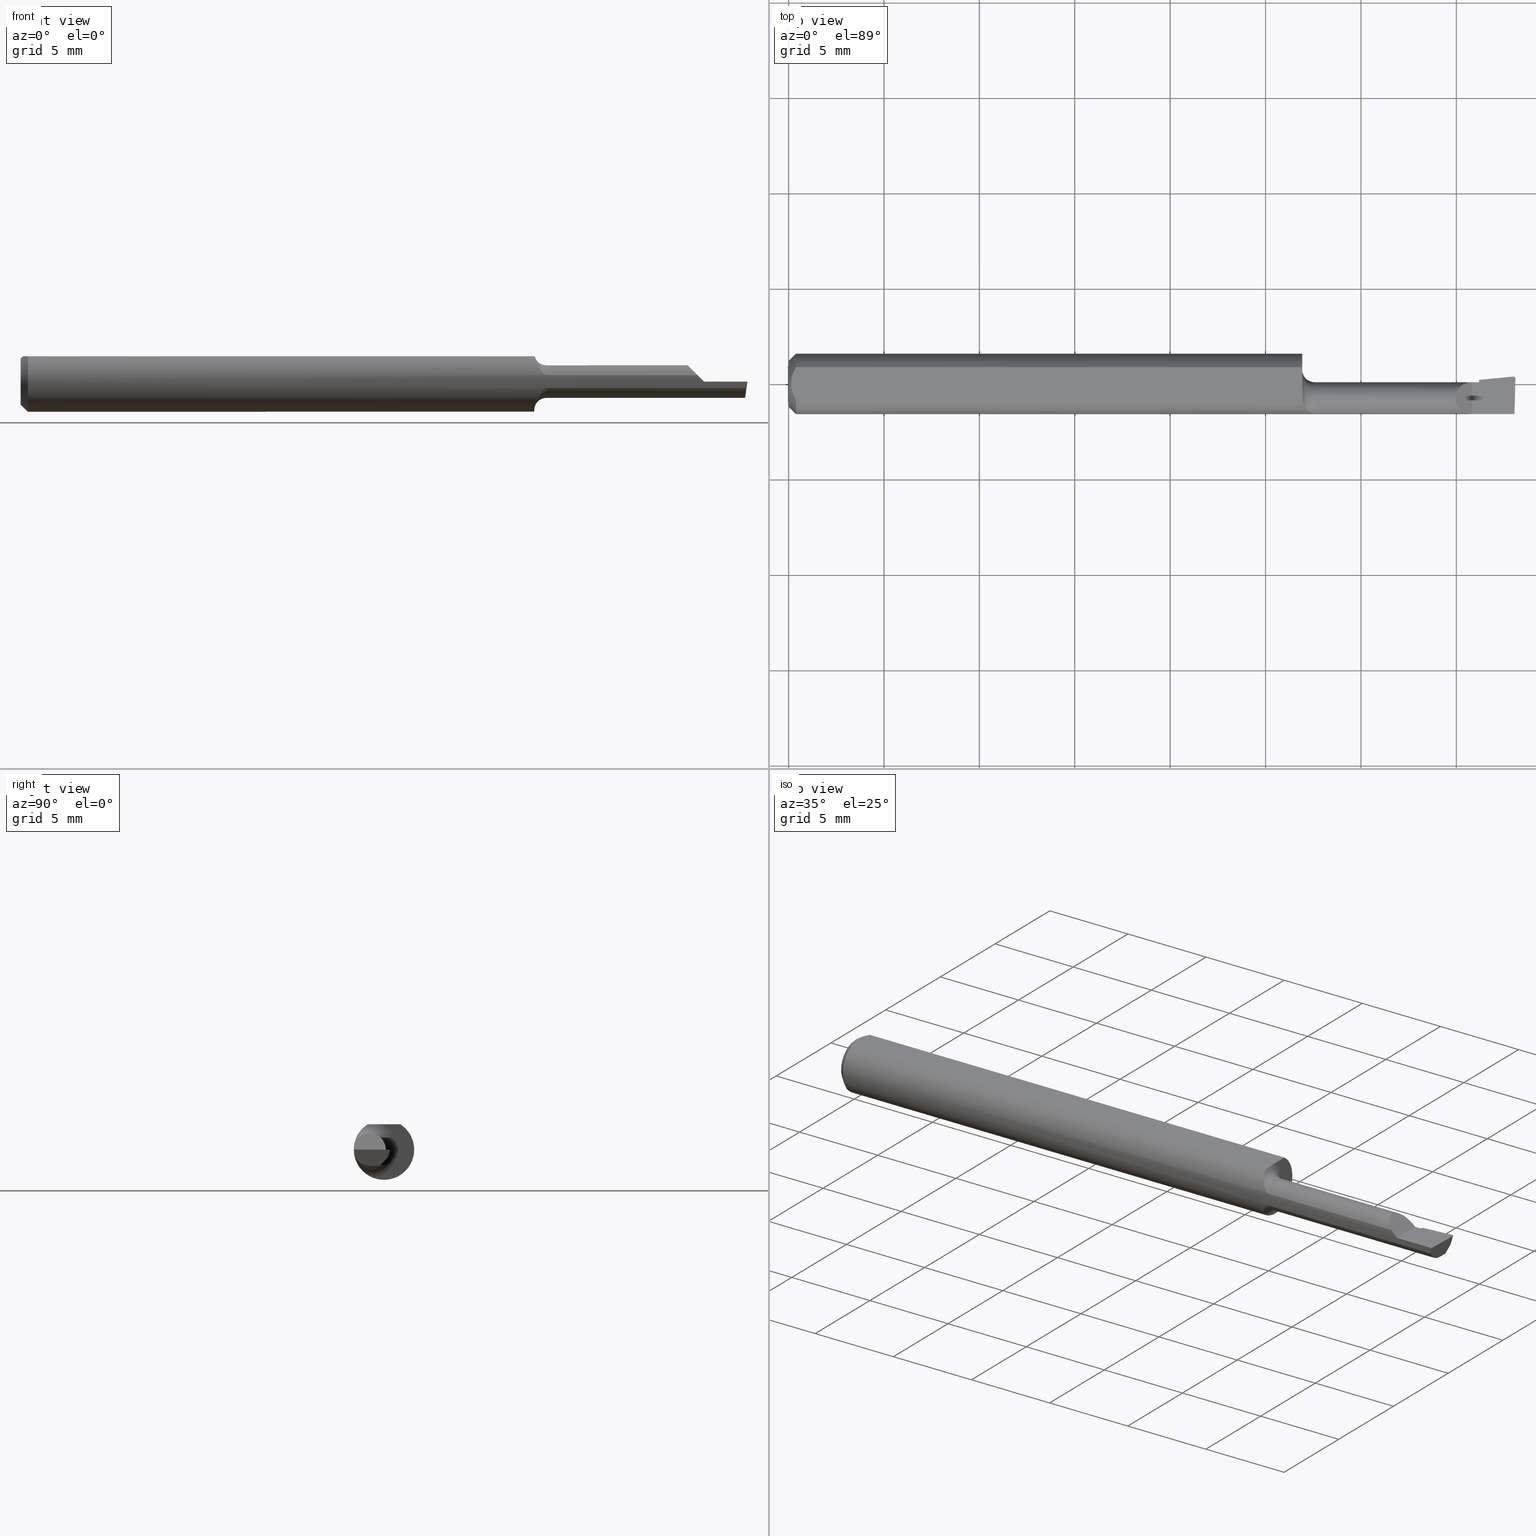
[diagram: canonical four-view strip — front | top / right | iso, engineering-drawing reading convention]
A machine part, canonical four-view strip (front | top / right | iso — engineering-drawing reading convention). The complete STEP part file that produces these views, byte-faithful:
ISO-10303-21;
HEADER;
FILE_DESCRIPTION (( 'STEP AP214' ),
    '1' );
FILE_NAME ('B080400R.STEP',
    '2020-05-08T20:21:16',
    ( '' ),
    ( '' ),
    'SwSTEP 2.0',
    'SolidWorks 2018',
    '' );
FILE_SCHEMA (( 'AUTOMOTIVE_DESIGN' ));
ENDSEC;

DATA;
#1 = VECTOR ( 'NONE', #328, 39.37007874015748143 ) ;
#2 = VERTEX_POINT ( 'NONE', #625 ) ;
#3 = EDGE_CURVE ( 'NONE', #624, #163, #52, .T. ) ;
#4 = PLANE ( 'NONE',  #387 ) ;
#5 = PLANE ( 'NONE',  #442 ) ;
#6 = VERTEX_POINT ( 'NONE', #99 ) ;
#7 = CARTESIAN_POINT ( 'NONE',  ( 1.409999999999999920, -0.06235000000000005121, 1.102182119232617911E-17 ) ) ;
#8 = FACE_OUTER_BOUND ( 'NONE', #314, .T. ) ;
#9 = AXIS2_PLACEMENT_3D ( 'NONE', #580, #238, #511 ) ;
#10 = VERTEX_POINT ( 'NONE', #94 ) ;
#11 = CARTESIAN_POINT ( 'NONE',  ( 1.421744639163020851, 0.004121984496277333009, -0.01299999999999999767 ) ) ;
#12 = LENGTH_MEASURE_WITH_UNIT ( LENGTH_MEASURE( 0.02539999999999999897 ), #202 );
#13 = CARTESIAN_POINT ( 'NONE',  ( 1.499944638786165685, 0.01353584053852251862, 5.654436638416182417E-19 ) ) ;
#14 = PRESENTATION_STYLE_ASSIGNMENT (( #279 ) ) ;
#15 = B_SPLINE_CURVE_WITH_KNOTS ( 'NONE', 3,
 ( #459, #411, #193, #286, #582, #242 ),
 .UNSPECIFIED., .F., .F.,
 ( 4, 2, 4 ),
 ( 0.003037199019464981685, 0.003488061124369676216, 0.003938923229274370746 ),
 .UNSPECIFIED. ) ;
#16 = ORIENTED_EDGE ( 'NONE', *, *, #71, .F. ) ;
#17 = CARTESIAN_POINT ( 'NONE',  ( 1.060459195061412618, -0.03294655339399239075, -0.05323881456264101253 ) ) ;
#18 = EDGE_CURVE ( 'NONE', #384, #233, #82, .T. ) ;
#19 =( GEOMETRIC_REPRESENTATION_CONTEXT ( 3 ) GLOBAL_UNCERTAINTY_ASSIGNED_CONTEXT ( ( #298 ) ) GLOBAL_UNIT_ASSIGNED_CONTEXT ( ( #399, #149, #339 ) ) REPRESENTATION_CONTEXT ( 'NONE', 'WORKASPACE' ) );
#20 =( NAMED_UNIT ( * ) PLANE_ANGLE_UNIT ( ) SI_UNIT ( $, .RADIAN. ) );
#21 = CARTESIAN_POINT ( 'NONE',  ( 1.079807319243623942, -0.06032049651225029202, 0.01580211994234496584 ) ) ;
#22 =( BOUNDED_CURVE ( )  B_SPLINE_CURVE ( 3, ( #80, #13, #113, #98 ),
 .UNSPECIFIED., .F., .T. ) 
 B_SPLINE_CURVE_WITH_KNOTS ( ( 4, 4 ),
 ( 1.953092279228625161, 3.511516179717927066 ),
 .UNSPECIFIED. ) 
 CURVE ( )  GEOMETRIC_REPRESENTATION_ITEM ( )  RATIONAL_B_SPLINE_CURVE ( ( 1.000000000000000000, 0.8076450242550308189, 0.8076450242550308189, 1.000000000000000000 ) ) 
 REPRESENTATION_ITEM ( '' )  );
#23 = ORIENTED_EDGE ( 'NONE', *, *, #409, .F. ) ;
#24 = FACE_OUTER_BOUND ( 'NONE', #475, .T. ) ;
#25 =( NAMED_UNIT ( * ) SI_UNIT ( $, .STERADIAN. ) SOLID_ANGLE_UNIT ( ) );
#26 = EDGE_CURVE ( 'NONE', #6, #237, #195, .T. ) ;
#27 = VERTEX_POINT ( 'NONE', #470 ) ;
#28 = ORIENTED_EDGE ( 'NONE', *, *, #462, .T. ) ;
#29 = CARTESIAN_POINT ( 'NONE',  ( 1.363008094618844535, 0.003649999999999974879, 0.04699190538115510102 ) ) ;
#30 = LINE ( 'NONE', #416, #212 ) ;
#31 = CONICAL_SURFACE ( 'NONE', #220, 0.06235000000000000264, 0.7853981633974594923 ) ;
#32 = CARTESIAN_POINT ( 'NONE',  ( 1.060770118751884317, -0.03386738844373782253, 0.05235000000000000070 ) ) ;
#33 =( LENGTH_UNIT ( ) NAMED_UNIT ( * ) SI_UNIT ( $, .METRE. ) );
#34 = CARTESIAN_POINT ( 'NONE',  ( 1.425000000000000266, 0.01742832138518450244, 0.0000000000000000000 ) ) ;
#35 = ADVANCED_FACE ( 'NONE', ( #83 ), #421, .F. ) ;
#36 = DIRECTION ( 'NONE',  ( -2.845674993400274571E-18, -1.000000000000000000, 0.0000000000000000000 ) ) ;
#37 = DIRECTION ( 'NONE',  ( -1.000000000000000000, -0.0000000000000000000, -0.0000000000000000000 ) ) ;
#38 = AXIS2_PLACEMENT_3D ( 'NONE', #89, #135, #449 ) ;
#39 = DIRECTION ( 'NONE',  ( 1.000000000000000000, -2.845674993400274571E-18, 0.0000000000000000000 ) ) ;
#40 = ADVANCED_FACE ( 'NONE', ( #24 ), #507, .T. ) ;
#41 = ORIENTED_EDGE ( 'NONE', *, *, #131, .T. ) ;
#42 = CARTESIAN_POINT ( 'NONE',  ( 1.496364186706980792, -0.06092000000000002968, -0.01327690099383122685 ) ) ;
#43 = DIRECTION ( 'NONE',  ( 0.0000000000000000000, 1.000000000000000000, 0.0000000000000000000 ) ) ;
#44 = ORIENTED_EDGE ( 'NONE', *, *, #438, .F. ) ;
#45 = DIMENSIONAL_EXPONENTS ( 1.000000000000000000, 0.0000000000000000000, 0.0000000000000000000, 0.0000000000000000000, 0.0000000000000000000, 0.0000000000000000000, 0.0000000000000000000 ) ;
#46 = PLANE ( 'NONE',  #593 ) ;
#47 = DIRECTION ( 'NONE',  ( -0.1240019227990024203, -0.3022330132596681151, -0.9451342385281211733 ) ) ;
#48 =( CONVERSION_BASED_UNIT ( 'INCH', #346 ) LENGTH_UNIT ( ) NAMED_UNIT ( #198 ) );
#49 = VERTEX_POINT ( 'NONE', #599 ) ;
#50 = ORIENTED_EDGE ( 'NONE', *, *, #192, .F. ) ;
#51 = DIRECTION ( 'NONE',  ( 0.06894566448119619773, -0.7160281025913035613, 0.6946583704589934793 ) ) ;
#52 =( BOUNDED_CURVE ( )  B_SPLINE_CURVE ( 3, ( #597, #574, #628, #347 ),
 .UNSPECIFIED., .F., .T. ) 
 B_SPLINE_CURVE_WITH_KNOTS ( ( 4, 4 ),
 ( 1.146162383294269560, 1.360746882514247469 ),
 .UNSPECIFIED. ) 
 CURVE ( )  GEOMETRIC_REPRESENTATION_ITEM ( )  RATIONAL_B_SPLINE_CURVE ( ( 1.000000000000000000, 0.9961664706887894960, 0.9961664706887894960, 1.000000000000000000 ) ) 
 REPRESENTATION_ITEM ( '' )  );
#53 = CARTESIAN_POINT ( 'NONE',  ( 1.422586135878207481, -0.004617293032568263803, -0.02209164292227905335 ) ) ;
#54 = FACE_OUTER_BOUND ( 'NONE', #324, .T. ) ;
#55 = AXIS2_PLACEMENT_3D ( 'NONE', #336, #145, #410 ) ;
#56 = FACE_OUTER_BOUND ( 'NONE', #592, .T. ) ;
#57 = DIRECTION ( 'NONE',  ( 0.0000000000000000000, 0.0000000000000000000, 1.000000000000000000 ) ) ;
#58 = CARTESIAN_POINT ( 'NONE',  ( 1.495634880358096996, 0.01522968678441272497, 4.859216828160406885E-19 ) ) ;
#59 = B_SPLINE_CURVE_WITH_KNOTS ( 'NONE', 3,
 ( #183, #402, #446, #364 ),
 .UNSPECIFIED., .F., .F.,
 ( 4, 4 ),
 ( 0.0000000000000000000, 1.000000000000000000 ),
 .UNSPECIFIED. ) ;
#60 = ORIENTED_EDGE ( 'NONE', *, *, #178, .T. ) ;
#61 = CARTESIAN_POINT ( 'NONE',  ( 1.495883579913040773, 0.01524764111161443919, 1.062779938853728175E-18 ) ) ;
#62 = CARTESIAN_POINT ( 'NONE',  ( 1.422808130611181499, -0.006922796484203440522, -0.02449010367251428302 ) ) ;
#63 = EDGE_CURVE ( 'NONE', #2, #6, #432, .T. ) ;
#64 = ORIENTED_EDGE ( 'NONE', *, *, #71, .T. ) ;
#65 = FILL_AREA_STYLE_COLOUR ( '', #373 ) ;
#66 = AXIS2_PLACEMENT_3D ( 'NONE', #415, #147, #191 ) ;
#67 = VERTEX_POINT ( 'NONE', #537 ) ;
#68 = ORIENTED_EDGE ( 'NONE', *, *, #224, .T. ) ;
#69 = ORIENTED_EDGE ( 'NONE', *, *, #380, .F. ) ;
#70 = DIRECTION ( 'NONE',  ( 0.06894566448119619773, -0.7160281025913035613, 0.6946583704589934793 ) ) ;
#71 = EDGE_CURVE ( 'NONE', #634, #115, #469, .T. ) ;
#72 = FACE_OUTER_BOUND ( 'NONE', #210, .T. ) ;
#73 = CARTESIAN_POINT ( 'NONE',  ( 1.060000000000000275, -0.003555718954753289696, 0.05235000000000000070 ) ) ;
#74 = VECTOR ( 'NONE', #37, 39.37007874015748143 ) ;
#75 = DIRECTION ( 'NONE',  ( 1.000000000000000000, 0.0000000000000000000, 0.0000000000000000000 ) ) ;
#76 = DIRECTION ( 'NONE',  ( 0.02617694830794567093, 0.9996573249755552615, -3.584133854804236655E-18 ) ) ;
#77 = EDGE_CURVE ( 'NONE', #67, #237, #478, .T. ) ;
#78 = VERTEX_POINT ( 'NONE', #140 ) ;
#79 = VERTEX_POINT ( 'NONE', #95 ) ;
#80 = CARTESIAN_POINT ( 'NONE',  ( 1.499880855614027064, 0.01110005946549046454, -8.416961635954006228E-20 ) ) ;
#81 = LINE ( 'NONE', #376, #304 ) ;
#82 = CIRCLE ( 'NONE', #136, 0.03364999999999995772 ) ;
#83 = FACE_OUTER_BOUND ( 'NONE', #250, .T. ) ;
#84 = CARTESIAN_POINT ( 'NONE',  ( 1.064663954570610249, -0.04772651244230442791, 0.04037711979630428938 ) ) ;
#85 = FACE_BOUND ( 'NONE', #481, .T. ) ;
#86 = ORIENTED_EDGE ( 'NONE', *, *, #427, .T. ) ;
#87 = CARTESIAN_POINT ( 'NONE',  ( 1.082669914596958050, -0.06082078945086089039, 0.01373977049058535890 ) ) ;
#88 = ORIENTED_EDGE ( 'NONE', *, *, #272, .T. ) ;
#89 = CARTESIAN_POINT ( 'NONE',  ( 1.500000000000000222, 0.1123499999999999915, 0.05234999999999998682 ) ) ;
#90 = FACE_OUTER_BOUND ( 'NONE', #647, .T. ) ;
#91 = DIRECTION ( 'NONE',  ( -1.000000000000000000, 2.845674993400274571E-18, 0.0000000000000000000 ) ) ;
#92 = CARTESIAN_POINT ( 'NONE',  ( 1.060000000000000275, 0.1123499999999999915, 0.05234999999999998682 ) ) ;
#93 = ADVANCED_FACE ( 'NONE', ( #204 ), #505, .F. ) ;
#94 = CARTESIAN_POINT ( 'NONE',  ( 1.396723099006168756, -0.06092000000000002968, 0.01327690099383124073 ) ) ;
#95 = CARTESIAN_POINT ( 'NONE',  ( 1.425000000000000266, 0.004435440092809578294, -0.01299999999999999767 ) ) ;
#96 = ORIENTED_EDGE ( 'NONE', *, *, #236, .F. ) ;
#97 = ADVANCED_FACE ( 'NONE', ( #311 ), #405, .F. ) ;
#98 = CARTESIAN_POINT ( 'NONE',  ( 1.496007920276510195, 0.01524764111161444266, -1.067128122525102820E-18 ) ) ;
#99 = CARTESIAN_POINT ( 'NONE',  ( 1.495634880358096996, 0.01522968678441272497, 4.859216828160406885E-19 ) ) ;
#100 = EDGE_CURVE ( 'NONE', #618, #79, #230, .T. ) ;
#101 = CARTESIAN_POINT ( 'NONE',  ( 1.060000000000000275, 0.0000000000000000000, 0.0000000000000000000 ) ) ;
#102 = VECTOR ( 'NONE', #616, 39.37007874015748143 ) ;
#103 = ORIENTED_EDGE ( 'NONE', *, *, #192, .T. ) ;
#104 = DIRECTION ( 'NONE',  ( 0.1240019227990024203, 0.3022330132596681151, 0.9451342385281212843 ) ) ;
#105 = VECTOR ( 'NONE', #480, 39.37007874015748143 ) ;
#106 = CARTESIAN_POINT ( 'NONE',  ( 1.497957498117606479, -0.06235000000000005121, 1.791754701920804801E-19 ) ) ;
#107 =( BOUNDED_CURVE ( )  B_SPLINE_CURVE ( 3, ( #585, #337, #412, #150 ),
 .UNSPECIFIED., .F., .T. ) 
 B_SPLINE_CURVE_WITH_KNOTS ( ( 4, 4 ),
 ( 3.156599629463101131, 4.715023529952379278 ),
 .UNSPECIFIED. ) 
 CURVE ( )  GEOMETRIC_REPRESENTATION_ITEM ( )  RATIONAL_B_SPLINE_CURVE ( ( 1.000000000000000000, 0.8076450242550362590, 0.8076450242550362590, 1.000000000000000000 ) ) 
 REPRESENTATION_ITEM ( '' )  );
#108 = ORIENTED_EDGE ( 'NONE', *, *, #178, .F. ) ;
#109 = EDGE_CURVE ( 'NONE', #488, #516, #501, .T. ) ;
#110 = CARTESIAN_POINT ( 'NONE',  ( 1.494675147154936878, -0.02986056382103132595, -0.03365000000000000629 ) ) ;
#111 = CARTESIAN_POINT ( 'NONE',  ( 1.405531640871310994, -0.06235000000000000958, 0.004468359128689231886 ) ) ;
#112 = ORIENTED_EDGE ( 'NONE', *, *, #100, .T. ) ;
#113 = CARTESIAN_POINT ( 'NONE',  ( 1.498346190944516598, 0.01524764111161450858, 7.611970671295696895E-19 ) ) ;
#114 = EDGE_CURVE ( 'NONE', #2, #271, #457, .T. ) ;
#115 = VERTEX_POINT ( 'NONE', #638 ) ;
#116 = ORIENTED_EDGE ( 'NONE', *, *, #348, .F. ) ;
#117 = CARTESIAN_POINT ( 'NONE',  ( 1.494591462065969711, 0.007985329624770108256, -0.009577813142602342386 ) ) ;
#118 = ORIENTED_EDGE ( 'NONE', *, *, #114, .F. ) ;
#119 = EDGE_LOOP ( 'NONE', ( #229, #344, #60, #300, #528 ) ) ;
#120 = DIRECTION ( 'NONE',  ( -1.000000000000000000, -0.0000000000000000000, -0.0000000000000000000 ) ) ;
#121 = CYLINDRICAL_SURFACE ( 'NONE', #249, 0.003999999999999998349 ) ;
#122 = B_SPLINE_CURVE_WITH_KNOTS ( 'NONE', 3,
 ( #73, #218, #123, #435, #174, #267 ),
 .UNSPECIFIED., .F., .F.,
 ( 4, 2, 4 ),
 ( 2.951825381264365662E-05, 0.0004145759864934283755, 0.0007996337191742130266 ),
 .UNSPECIFIED. ) ;
#123 = CARTESIAN_POINT ( 'NONE',  ( 1.060303160474311390, -0.01365768250280466507, 0.05235000000000000070 ) ) ;
#124 = CARTESIAN_POINT ( 'NONE',  ( 0.01216137397042175820, -0.02864146636719541034, 0.05235000000000000070 ) ) ;
#125 = COLOUR_RGB ( '',0.7529411764705882248, 0.7529411764705882248, 0.7529411764705882248 ) ;
#126 = CIRCLE ( 'NONE', #9, 0.03364999999999999936 ) ;
#127 = ORIENTED_EDGE ( 'NONE', *, *, #319, .F. ) ;
#128 = DIRECTION ( 'NONE',  ( 1.000000000000000000, 0.0000000000000000000, 0.0000000000000000000 ) ) ;
#129 = LINE ( 'NONE', #219, #553 ) ;
#130 = CARTESIAN_POINT ( 'NONE',  ( 0.01500000000000000465, 0.0000000000000000000, -0.06235000000000000264 ) ) ;
#131 = EDGE_CURVE ( 'NONE', #246, #618, #543, .T. ) ;
#132 = CARTESIAN_POINT ( 'NONE',  ( 1.079828686665877058, -0.06034170405075480609, -0.01572293840682431956 ) ) ;
#133 = CARTESIAN_POINT ( 'NONE',  ( 0.004999999999989931769, 7.898418181085889318E-16, 0.05235000000000000070 ) ) ;
#134 = FACE_OUTER_BOUND ( 'NONE', #359, .T. ) ;
#135 = DIRECTION ( 'NONE',  ( 0.0000000000000000000, -7.598598113218357399E-17, -1.000000000000000000 ) ) ;
#136 = AXIS2_PLACEMENT_3D ( 'NONE', #534, #540, #519 ) ;
#137 = CARTESIAN_POINT ( 'NONE',  ( 1.425000000000000266, -0.02999999999999999889, -0.03365000000000000629 ) ) ;
#138 = VERTEX_POINT ( 'NONE', #524 ) ;
#139 = DIRECTION ( 'NONE',  ( -2.845674993400274571E-18, -1.000000000000000000, 0.0000000000000000000 ) ) ;
#140 = CARTESIAN_POINT ( 'NONE',  ( 0.0000000000000000000, 0.0000000000000000000, -0.04734999999999965625 ) ) ;
#141 = EDGE_CURVE ( 'NONE', #634, #157, #375, .T. ) ;
#142 = ADVANCED_FACE ( 'NONE', ( #590 ), #46, .F. ) ;
#143 = CARTESIAN_POINT ( 'NONE',  ( 1.494176789766209490, 0.01108763844847083721, -0.01300903864505086223 ) ) ;
#144 = AXIS2_PLACEMENT_3D ( 'NONE', #357, #310, #610 ) ;
#145 = DIRECTION ( 'NONE',  ( -0.9922060308645400672, 0.02598182930476513816, 0.1218693434051957708 ) ) ;
#146 = VERTEX_POINT ( 'NONE', #151 ) ;
#147 = DIRECTION ( 'NONE',  ( 1.000000000000000000, -2.845674993400274571E-18, 0.0000000000000000000 ) ) ;
#148 = ORIENTED_EDGE ( 'NONE', *, *, #258, .T. ) ;
#149 =( NAMED_UNIT ( * ) PLANE_ANGLE_UNIT ( ) SI_UNIT ( $, .RADIAN. ) );
#150 = CARTESIAN_POINT ( 'NONE',  ( 1.497277153107351877, 0.004753989691235509067, -0.01984524377085019470 ) ) ;
#151 = CARTESIAN_POINT ( 'NONE',  ( 0.01500000000000185213, -0.03386738844380016850, 0.05235000000000000070 ) ) ;
#152 =( BOUNDED_CURVE ( )  B_SPLINE_CURVE ( 3, ( #343, #456, #143, #575 ),
 .UNSPECIFIED., .F., .T. ) 
 B_SPLINE_CURVE_WITH_KNOTS ( ( 4, 4 ),
 ( 3.064097098354478188, 3.156599629463101131 ),
 .UNSPECIFIED. ) 
 CURVE ( )  GEOMETRIC_REPRESENTATION_ITEM ( )  RATIONAL_B_SPLINE_CURVE ( ( 1.000000000000000000, 0.9992870672494005291, 0.9992870672494005291, 1.000000000000000000 ) ) 
 REPRESENTATION_ITEM ( '' )  );
#153 = VECTOR ( 'NONE', #510, 39.37007874015748854 ) ;
#154 = CARTESIAN_POINT ( 'NONE',  ( 1.425000000000000266, 0.01723212120761676014, 0.0001903446179552598853 ) ) ;
#155 = ORIENTED_EDGE ( 'NONE', *, *, #586, .F. ) ;
#156 = ORIENTED_EDGE ( 'NONE', *, *, #601, .F. ) ;
#157 = VERTEX_POINT ( 'NONE', #290 ) ;
#158 = AXIS2_PLACEMENT_3D ( 'NONE', #642, #588, #57 ) ;
#159 = EDGE_LOOP ( 'NONE', ( #329, #156, #460, #215, #613 ) ) ;
#160 = CARTESIAN_POINT ( 'NONE',  ( 1.494298760919618330, 0.01108186391304843976, -0.01302709660331436564 ) ) ;
#161 = FACE_OUTER_BOUND ( 'NONE', #322, .T. ) ;
#162 = CARTESIAN_POINT ( 'NONE',  ( 1.423453955186838593, -0.005345927311154199946, -0.02292882422404297557 ) ) ;
#163 = VERTEX_POINT ( 'NONE', #106 ) ;
#164 = DIRECTION ( 'NONE',  ( 0.0000000000000000000, 0.9524855432518752885, -0.3045837978228326803 ) ) ;
#165 = EDGE_CURVE ( 'NONE', #27, #516, #492, .T. ) ;
#166 = CARTESIAN_POINT ( 'NONE',  ( 1.494942300338901298, -0.05544825464842374069, -0.02601981188465945019 ) ) ;
#167 = ORIENTED_EDGE ( 'NONE', *, *, #3, .T. ) ;
#168 = LINE ( 'NONE', #489, #397 ) ;
#169 = DIRECTION ( 'NONE',  ( -0.7071067811865432429, 0.0000000000000000000, -0.7071067811865517916 ) ) ;
#170 = VERTEX_POINT ( 'NONE', #522 ) ;
#171 = ORIENTED_EDGE ( 'NONE', *, *, #114, .T. ) ;
#172 =( BOUNDED_CURVE ( )  B_SPLINE_CURVE ( 3, ( #280, #325, #29, #368 ),
 .UNSPECIFIED., .F., .T. ) 
 B_SPLINE_CURVE_WITH_KNOTS ( ( 4, 4 ),
 ( 5.117976542370898940, 7.853981633974482790 ),
 .UNSPECIFIED. ) 
 CURVE ( )  GEOMETRIC_REPRESENTATION_ITEM ( )  RATIONAL_B_SPLINE_CURVE ( ( 1.000000000000000000, 0.4676044288551156614, 0.4676044288551156614, 1.000000000000000000 ) ) 
 REPRESENTATION_ITEM ( '' )  );
#173 = CARTESIAN_POINT ( 'NONE',  ( 1.421363700328992952, 0.008078185550903291615, 0.0000000000000000000 ) ) ;
#174 = CARTESIAN_POINT ( 'NONE',  ( 1.060864870788666314, -0.02880649294741972899, 0.05235000000000000070 ) ) ;
#175 = LINE ( 'NONE', #288, #417 ) ;
#176 = DIRECTION ( 'NONE',  ( 0.7071067811865395791, 8.659560562355030233E-17, 0.7071067811865554553 ) ) ;
#177 = ORIENTED_EDGE ( 'NONE', *, *, #26, .F. ) ;
#178 = EDGE_CURVE ( 'NONE', #445, #488, #15, .T. ) ;
#179 = AXIS2_PLACEMENT_3D ( 'NONE', #622, #273, #362 ) ;
#180 = CARTESIAN_POINT ( 'NONE',  ( 1.067651921643428814, -0.05268295501176721574, -0.03378546887498617979 ) ) ;
#181 = CARTESIAN_POINT ( 'NONE',  ( 1.076050480108695639, -0.05911543623058085339, -0.01994584841871081468 ) ) ;
#182 = LINE ( 'NONE', #431, #631 ) ;
#183 = CARTESIAN_POINT ( 'NONE',  ( 1.422586135878207481, -0.004617293032568263803, -0.02209164292227905335 ) ) ;
#184 = CARTESIAN_POINT ( 'NONE',  ( 1.474655795189113938, 0.01320963064143656010, 3.103769929858640237E-18 ) ) ;
#185 = ORIENTED_EDGE ( 'NONE', *, *, #438, .T. ) ;
#186 =( CONVERSION_BASED_UNIT ( 'INCH', #426 ) LENGTH_UNIT ( ) NAMED_UNIT ( #520 ) );
#187 = ADVANCED_FACE ( 'NONE', ( #134 ), #517, .F. ) ;
#188 = DIRECTION ( 'NONE',  ( 2.845674993400274571E-18, 1.000000000000000000, -3.484946772081307763E-34 ) ) ;
#189 = LINE ( 'NONE', #419, #105 ) ;
#190 = APPLICATION_CONTEXT ( 'automotive_design' ) ;
#191 = DIRECTION ( 'NONE',  ( 2.845674993400274571E-18, 1.000000000000000000, 0.0000000000000000000 ) ) ;
#192 = EDGE_CURVE ( 'NONE', #67, #246, #126, .T. ) ;
#193 = CARTESIAN_POINT ( 'NONE',  ( 0.006064493299689842180, 0.01189382783781397189, 0.05235000000000000070 ) ) ;
#194 =( BOUNDED_CURVE ( )  B_SPLINE_CURVE ( 3, ( #53, #162, #345, #62 ),
 .UNSPECIFIED., .F., .T. ) 
 B_SPLINE_CURVE_WITH_KNOTS ( ( 4, 4 ),
 ( 3.087527693676608731, 3.186434404596859338 ),
 .UNSPECIFIED. ) 
 CURVE ( )  GEOMETRIC_REPRESENTATION_ITEM ( )  RATIONAL_B_SPLINE_CURVE ( ( 1.000000000000000000, 0.9991849546734639098, 0.9991849546734639098, 1.000000000000000000 ) ) 
 REPRESENTATION_ITEM ( '' )  );
#195 = LINE ( 'NONE', #184, #486 ) ;
#196 = VECTOR ( 'NONE', #413, 39.37007874015748143 ) ;
#197 = STYLED_ITEM ( 'NONE', ( #477 ), #231 ) ;
#198 = DIMENSIONAL_EXPONENTS ( 1.000000000000000000, 0.0000000000000000000, 0.0000000000000000000, 0.0000000000000000000, 0.0000000000000000000, 0.0000000000000000000, 0.0000000000000000000 ) ;
#199 = CARTESIAN_POINT ( 'NONE',  ( 0.0000000000000000000, 0.03386738844375223462, 0.05234999999999997988 ) ) ;
#200 =( NAMED_UNIT ( * ) SI_UNIT ( $, .STERADIAN. ) SOLID_ANGLE_UNIT ( ) );
#201 = ORIENTED_EDGE ( 'NONE', *, *, #299, .T. ) ;
#202 =( LENGTH_UNIT ( ) NAMED_UNIT ( * ) SI_UNIT ( $, .METRE. ) );
#203 = CARTESIAN_POINT ( 'NONE',  ( 1.500000000000000222, -0.2500000000000000555, 0.0000000000000000000 ) ) ;
#204 = FACE_OUTER_BOUND ( 'NONE', #643, .T. ) ;
#205 = LINE ( 'NONE', #11, #434 ) ;
#206 = LINE ( 'NONE', #623, #74 ) ;
#207 = ORIENTED_EDGE ( 'NONE', *, *, #165, .T. ) ;
#208 = CARTESIAN_POINT ( 'NONE',  ( 1.396723099006168756, -0.06092000000000002968, 0.01327690099383124073 ) ) ;
#209 = EDGE_CURVE ( 'NONE', #49, #67, #253, .T. ) ;
#210 = EDGE_LOOP ( 'NONE', ( #118, #254, #395, #495 ) ) ;
#211 = DIRECTION ( 'NONE',  ( -0.1240019227990024342, -0.3022330132596681151, -0.9451342385281212843 ) ) ;
#212 = VECTOR ( 'NONE', #306, 39.37007874015748143 ) ;
#213 = FACE_OUTER_BOUND ( 'NONE', #363, .T. ) ;
#214 = DIRECTION ( 'NONE',  ( 1.000000000000000000, 0.0000000000000000000, 0.0000000000000000000 ) ) ;
#215 = ORIENTED_EDGE ( 'NONE', *, *, #409, .T. ) ;
#216 = DIRECTION ( 'NONE',  ( 0.0000000000000000000, -0.2936076258024061802, -0.9559260233253795702 ) ) ;
#217 = VERTEX_POINT ( 'NONE', #340 ) ;
#218 = CARTESIAN_POINT ( 'NONE',  ( 1.060000000000000275, -0.008611455327202423640, 0.05235000000000000070 ) ) ;
#219 = CARTESIAN_POINT ( 'NONE',  ( 1.493048476612020448, -0.2498179679537755049, 8.513160866287305864E-19 ) ) ;
#220 = AXIS2_PLACEMENT_3D ( 'NONE', #259, #214, #305 ) ;
#221 = ORIENTED_EDGE ( 'NONE', *, *, #258, .F. ) ;
#222 = CARTESIAN_POINT ( 'NONE',  ( 1.074448669179930871, -0.05829317251375062264, -0.02226264029831841532 ) ) ;
#223 = SURFACE_STYLE_FILL_AREA ( #228 ) ;
#224 = EDGE_CURVE ( 'NONE', #79, #237, #81, .T. ) ;
#225 = ORIENTED_EDGE ( 'NONE', *, *, #633, .T. ) ;
#226 = CARTESIAN_POINT ( 'NONE',  ( 1.066221614559560882, -0.05050373301684462496, 0.03681593035639608991 ) ) ;
#227 = PRESENTATION_LAYER_ASSIGNMENT (  '', '', ( #197 ) ) ;
#228 = FILL_AREA_STYLE ('',( #65 ) ) ;
#229 = ORIENTED_EDGE ( 'NONE', *, *, #485, .F. ) ;
#230 = LINE ( 'NONE', #154, #196 ) ;
#231 = ADVANCED_BREP_SHAPE_REPRESENTATION ( 'B080400R', ( #366, #382 ), #19 ) ;
#232 = CARTESIAN_POINT ( 'NONE',  ( 1.060000000000000275, -0.02246166666666676859, -0.05816352835373341662 ) ) ;
#233 = VERTEX_POINT ( 'NONE', #474 ) ;
#234 = ADVANCED_FACE ( 'NONE', ( #8 ), #441, .T. ) ;
#235 = CARTESIAN_POINT ( 'NONE',  ( 1.425000000000000266, -0.2500000000000000555, 9.184850993605122553E-18 ) ) ;
#236 = EDGE_CURVE ( 'NONE', #358, #271, #152, .T. ) ;
#237 = VERTEX_POINT ( 'NONE', #296 ) ;
#238 = DIRECTION ( 'NONE',  ( -1.000000000000000000, 2.845674993400274571E-18, -0.0000000000000000000 ) ) ;
#239 = VECTOR ( 'NONE', #47, 39.37007874015748143 ) ;
#240 = DIRECTION ( 'NONE',  ( -1.000000000000000000, 2.845674993400274571E-18, -0.0000000000000000000 ) ) ;
#241 = AXIS2_PLACEMENT_3D ( 'NONE', #390, #120, #428 ) ;
#242 = CARTESIAN_POINT ( 'NONE',  ( 0.01500000000000000465, 0.03386738844375223462, 0.05234999999999997988 ) ) ;
#243 = CARTESIAN_POINT ( 'NONE',  ( 1.497277153107351877, 0.004753989691235509067, -0.01984524377085019470 ) ) ;
#244 = CARTESIAN_POINT ( 'NONE',  ( 1.060000000000000275, -0.003555718954753289696, 0.05235000000000000070 ) ) ;
#245 = CARTESIAN_POINT ( 'NONE',  ( 1.425000000000000266, -0.02999999999999999889, -0.03365000000000000629 ) ) ;
#246 = VERTEX_POINT ( 'NONE', #137 ) ;
#247 = DIRECTION ( 'NONE',  ( 1.000000000000000000, 0.0000000000000000000, 0.0000000000000000000 ) ) ;
#248 =( BOUNDED_CURVE ( )  B_SPLINE_CURVE ( 3, ( #483, #166, #388, #541 ),
 .UNSPECIFIED., .F., .T. ) 
 B_SPLINE_CURVE_WITH_KNOTS ( ( 4, 4 ),
 ( 5.328025986651549140, 6.493234751460234655 ),
 .UNSPECIFIED. ) 
 CURVE ( )  GEOMETRIC_REPRESENTATION_ITEM ( )  RATIONAL_B_SPLINE_CURVE ( ( 1.000000000000000000, 0.8900217005663144665, 0.8900217005663144665, 1.000000000000000000 ) ) 
 REPRESENTATION_ITEM ( '' )  );
#249 = AXIS2_PLACEMENT_3D ( 'NONE', #626, #404, #385 ) ;
#250 = EDGE_LOOP ( 'NONE', ( #252, #268, #490, #414, #276, #539, #527, #155 ) ) ;
#251 = ORIENTED_EDGE ( 'NONE', *, *, #620, .T. ) ;
#252 = ORIENTED_EDGE ( 'NONE', *, *, #447, .T. ) ;
#253 = LINE ( 'NONE', #332, #318 ) ;
#254 = ORIENTED_EDGE ( 'NONE', *, *, #566, .F. ) ;
#255 = DIRECTION ( 'NONE',  ( -0.0000000000000000000, 1.000000000000000000, -0.0000000000000000000 ) ) ;
#256 = ORIENTED_EDGE ( 'NONE', *, *, #640, .T. ) ;
#257 = ORIENTED_EDGE ( 'NONE', *, *, #3, .F. ) ;
#258 = EDGE_CURVE ( 'NONE', #269, #146, #454, .T. ) ;
#259 = CARTESIAN_POINT ( 'NONE',  ( 0.01500000000000000465, 0.0000000000000000000, 0.0000000000000000000 ) ) ;
#260 = LINE ( 'NONE', #92, #1 ) ;
#261 = MECHANICAL_DESIGN_GEOMETRIC_PRESENTATION_REPRESENTATION (  '', ( #197 ), #291 ) ;
#262 =( BOUNDED_CURVE ( )  B_SPLINE_CURVE ( 3, ( #383, #111, #533, #208 ),
 .UNSPECIFIED., .F., .T. ) 
 B_SPLINE_CURVE_WITH_KNOTS ( ( 4, 4 ),
 ( 4.712388980384689674, 4.926973479604667361 ),
 .UNSPECIFIED. ) 
 CURVE ( )  GEOMETRIC_REPRESENTATION_ITEM ( )  RATIONAL_B_SPLINE_CURVE ( ( 1.000000000000000000, 0.9961664706887894960, 0.9961664706887894960, 1.000000000000000000 ) ) 
 REPRESENTATION_ITEM ( '' )  );
#263 = DIRECTION ( 'NONE',  ( -1.000000000000000000, -0.0000000000000000000, -0.0000000000000000000 ) ) ;
#264 = VECTOR ( 'NONE', #526, 39.37007874015748143 ) ;
#265 = CARTESIAN_POINT ( 'NONE',  ( 1.421744639163020851, 0.004121984496277333009, -0.01299999999999999767 ) ) ;
#266 = CARTESIAN_POINT ( 'NONE',  ( 0.01500000000000185213, -0.03386738844380016850, 0.05235000000000000070 ) ) ;
#267 = CARTESIAN_POINT ( 'NONE',  ( 1.060770118751884317, -0.03386738844373782253, 0.05235000000000000070 ) ) ;
#268 = ORIENTED_EDGE ( 'NONE', *, *, #566, .T. ) ;
#269 = VERTEX_POINT ( 'NONE', #32 ) ;
#270 = CARTESIAN_POINT ( 'NONE',  ( 0.006057557792978140489, -0.01187252718384441616, 0.05234999999999998682 ) ) ;
#271 = VERTEX_POINT ( 'NONE', #160 ) ;
#272 = EDGE_CURVE ( 'NONE', #516, #650, #260, .T. ) ;
#273 = DIRECTION ( 'NONE',  ( -1.000000000000000000, 2.845674993400274571E-18, -0.0000000000000000000 ) ) ;
#274 = EDGE_LOOP ( 'NONE', ( #644, #645, #321, #108, #352, #221 ) ) ;
#275 = AXIS2_PLACEMENT_3D ( 'NONE', #173, #548, #216 ) ;
#276 = ORIENTED_EDGE ( 'NONE', *, *, #77, .F. ) ;
#277 = CARTESIAN_POINT ( 'NONE',  ( 1.083800894846882246, -0.06092000000060116688, 0.01327690099107451532 ) ) ;
#278 = CARTESIAN_POINT ( 'NONE',  ( 1.072102256738829862, -0.05694092632992445863, 0.02571027090688613251 ) ) ;
#279 = SURFACE_STYLE_USAGE ( .BOTH. , #564 ) ;
#280 = CARTESIAN_POINT ( 'NONE',  ( 1.396723099006168756, -0.06092000000000002968, 0.01327690099383124073 ) ) ;
#281 = ORIENTED_EDGE ( 'NONE', *, *, #557, .F. ) ;
#282 = ADVANCED_FACE ( 'NONE', ( #389 ), #121, .T. ) ;
#283 = CARTESIAN_POINT ( 'NONE',  ( 0.0000000000000000000, -0.03386738844375222768, 0.05234999999999997988 ) ) ;
#284 = CARTESIAN_POINT ( 'NONE',  ( 1.085000000000000187, -0.02999999999999999195, 0.0000000000000000000 ) ) ;
#285 = ADVANCED_FACE ( 'NONE', ( #418 ), #31, .T. ) ;
#286 = CARTESIAN_POINT ( 'NONE',  ( 0.009669996313769784607, 0.02323004575534281385, 0.05234999999999998682 ) ) ;
#287 = VECTOR ( 'NONE', #255, 39.37007874015748143 ) ;
#288 = CARTESIAN_POINT ( 'NONE',  ( 1.255000000000000115, -0.06092000000000002968, 0.01327690099383122685 ) ) ;
#289 = EDGE_CURVE ( 'NONE', #624, #170, #248, .T. ) ;
#290 = CARTESIAN_POINT ( 'NONE',  ( 1.499880855614027064, 0.01110005946549046454, -8.416961635954006228E-20 ) ) ;
#291 =( GEOMETRIC_REPRESENTATION_CONTEXT ( 3 ) GLOBAL_UNCERTAINTY_ASSIGNED_CONTEXT ( ( #408 ) ) GLOBAL_UNIT_ASSIGNED_CONTEXT ( ( #48, #20, #200 ) ) REPRESENTATION_CONTEXT ( 'NONE', 'WORKASPACE' ) );
#292 = VECTOR ( 'NONE', #188, 39.37007874015748143 ) ;
#293 = PLANE ( 'NONE',  #66 ) ;
#294 = CARTESIAN_POINT ( 'NONE',  ( 1.492000491577410326, -0.008106950511527381137, -0.06006359978098788771 ) ) ;
#295 = ORIENTED_EDGE ( 'NONE', *, *, #331, .F. ) ;
#296 = CARTESIAN_POINT ( 'NONE',  ( 1.425000000000000266, 0.008428321385185622017, 1.835460370743176819E-16 ) ) ;
#297 = AXIS2_PLACEMENT_3D ( 'NONE', #203, #453, #464 ) ;
#298 = UNCERTAINTY_MEASURE_WITH_UNIT (LENGTH_MEASURE( 1.000000000000000082E-05 ), #399, 'distance_accuracy_value', 'NONE');
#299 = EDGE_CURVE ( 'NONE', #482, #49, #558, .T. ) ;
#300 = ORIENTED_EDGE ( 'NONE', *, *, #608, .T. ) ;
#301 = CARTESIAN_POINT ( 'NONE',  ( 1.495759144559530851, 0.01524165206609383490, 1.078018874591399320E-18 ) ) ;
#302 = AXIS2_PLACEMENT_3D ( 'NONE', #546, #263, #607 ) ;
#303 = PRODUCT_DEFINITION_SHAPE ( 'NONE', 'NONE',  #403 ) ;
#304 = VECTOR ( 'NONE', #641, 39.37007874015748854 ) ;
#305 = DIRECTION ( 'NONE',  ( 0.0000000000000000000, 0.0000000000000000000, -1.000000000000000000 ) ) ;
#306 = DIRECTION ( 'NONE',  ( -1.000000000000000000, 2.845674993400274571E-18, -0.0000000000000000000 ) ) ;
#307 = DIRECTION ( 'NONE',  ( 0.9953961983671800740, 0.09584575252021028391, 1.058492079198500863E-18 ) ) ;
#308 = FACE_OUTER_BOUND ( 'NONE', #274, .T. ) ;
#309 = ORIENTED_EDGE ( 'NONE', *, *, #77, .T. ) ;
#310 = DIRECTION ( 'NONE',  ( -1.000000000000000000, -0.0000000000000000000, -0.0000000000000000000 ) ) ;
#311 = FACE_OUTER_BOUND ( 'NONE', #159, .T. ) ;
#312 = CIRCLE ( 'NONE', #560, 0.05864999999999995217 ) ;
#313 = CARTESIAN_POINT ( 'NONE',  ( 0.004999999999989931769, 7.898418181085889318E-16, 0.05235000000000000070 ) ) ;
#314 = EDGE_LOOP ( 'NONE', ( #617, #167, #466, #549, #349, #23, #148, #44, #518, #369, #354, #436 ) ) ;
#315 = CARTESIAN_POINT ( 'NONE',  ( 1.085000000000000187, -0.06092000000000008519, -0.01327690099383104991 ) ) ;
#316 = PLANE ( 'NONE',  #38 ) ;
#317 = ORIENTED_EDGE ( 'NONE', *, *, #620, .F. ) ;
#318 = VECTOR ( 'NONE', #39, 39.37007874015748143 ) ;
#319 = EDGE_CURVE ( 'NONE', #170, #246, #189, .T. ) ;
#320 = CARTESIAN_POINT ( 'NONE',  ( 1.077368540304127764, -0.05962881332384153271, 0.01830066387367074859 ) ) ;
#321 = ORIENTED_EDGE ( 'NONE', *, *, #109, .F. ) ;
#322 = EDGE_LOOP ( 'NONE', ( #177, #523, #565, #68 ) ) ;
#323 =( NAMED_UNIT ( * ) PLANE_ANGLE_UNIT ( ) SI_UNIT ( $, .RADIAN. ) );
#324 = EDGE_LOOP ( 'NONE', ( #365, #295, #201 ) ) ;
#325 = CARTESIAN_POINT ( 'NONE',  ( 1.353543612694569021, -0.04237893387051779037, 0.05645638730543054568 ) ) ;
#326 = ORIENTED_EDGE ( 'NONE', *, *, #348, .T. ) ;
#327 = PLANE ( 'NONE',  #604 ) ;
#328 = DIRECTION ( 'NONE',  ( -2.845674993400274571E-18, -1.000000000000000000, 7.598598113218357399E-17 ) ) ;
#329 = ORIENTED_EDGE ( 'NONE', *, *, #360, .T. ) ;
#330 = ADVANCED_FACE ( 'NONE', ( #72 ), #423, .T. ) ;
#331 = EDGE_CURVE ( 'NONE', #482, #10, #262, .T. ) ;
#332 = CARTESIAN_POINT ( 'NONE',  ( 9.575696352794166315E-20, 0.003649999999999977481, 1.836970198721026976E-16 ) ) ;
#333 = ORIENTED_EDGE ( 'NONE', *, *, #499, .T. ) ;
#334 = VERTEX_POINT ( 'NONE', #595 ) ;
#335 = DIRECTION ( 'NONE',  ( 0.0000000000000000000, 0.0000000000000000000, 1.000000000000000000 ) ) ;
#336 = CARTESIAN_POINT ( 'NONE',  ( 1.492670969023479621, -0.06014768907414845545, -0.04351009013361928357 ) ) ;
#337 = CARTESIAN_POINT ( 'NONE',  ( 1.496592477637190610, 0.01097327144618719975, -0.01336668378927335574 ) ) ;
#338 = DIRECTION ( 'NONE',  ( -1.214679925209547374E-34, -2.134256245050205023E-17, 1.000000000000000000 ) ) ;
#339 =( NAMED_UNIT ( * ) SI_UNIT ( $, .STERADIAN. ) SOLID_ANGLE_UNIT ( ) );
#340 = CARTESIAN_POINT ( 'NONE',  ( 0.01500000000000000465, 0.0000000000000000000, -0.06235000000000000264 ) ) ;
#341 = DIRECTION ( 'NONE',  ( -1.000000000000000000, 2.845674993400274571E-18, -0.0000000000000000000 ) ) ;
#342 = STYLED_ITEM ( 'NONE', ( #14 ), #366 ) ;
#343 = CARTESIAN_POINT ( 'NONE',  ( 1.493929276084467572, 0.01107257447992733394, -0.01299999999999999767 ) ) ;
#344 = ORIENTED_EDGE ( 'NONE', *, *, #557, .T. ) ;
#345 = CARTESIAN_POINT ( 'NONE',  ( 1.423528013792283220, -0.006115055335901294076, -0.02372896329039461336 ) ) ;
#346 = LENGTH_MEASURE_WITH_UNIT ( LENGTH_MEASURE( 0.02539999999999999897 ), #33 );
#347 = CARTESIAN_POINT ( 'NONE',  ( 1.497957498117606479, -0.06235000000000005121, 1.791754701920804801E-19 ) ) ;
#348 = EDGE_CURVE ( 'NONE', #391, #138, #194, .T. ) ;
#349 = ORIENTED_EDGE ( 'NONE', *, *, #633, .F. ) ;
#350 = CARTESIAN_POINT ( 'NONE',  ( 1.409999999999999920, -0.2500000000000000555, 1.102182119232617911E-17 ) ) ;
#351 = ORIENTED_EDGE ( 'NONE', *, *, #525, .T. ) ;
#352 = ORIENTED_EDGE ( 'NONE', *, *, #544, .F. ) ;
#353 = CARTESIAN_POINT ( 'NONE',  ( 1.060000000000000275, 0.03386738844375224156, 0.05235000000000000070 ) ) ;
#354 = ORIENTED_EDGE ( 'NONE', *, *, #165, .F. ) ;
#355 = AXIS2_PLACEMENT_3D ( 'NONE', #34, #91, #139 ) ;
#356 = ORIENTED_EDGE ( 'NONE', *, *, #236, .T. ) ;
#357 = CARTESIAN_POINT ( 'NONE',  ( 0.01500000000000000465, 0.0000000000000000000, 0.0000000000000000000 ) ) ;
#358 = VERTEX_POINT ( 'NONE', #493 ) ;
#359 = EDGE_LOOP ( 'NONE', ( #16, #509, #606, #257, #600, #317 ) ) ;
#360 = EDGE_CURVE ( 'NONE', #233, #27, #639, .T. ) ;
#361 = VECTOR ( 'NONE', #587, 39.37007874015748143 ) ;
#362 = DIRECTION ( 'NONE',  ( -2.845674993400274571E-18, -1.000000000000000000, 0.0000000000000000000 ) ) ;
#363 = EDGE_LOOP ( 'NONE', ( #594, #538 ) ) ;
#364 = CARTESIAN_POINT ( 'NONE',  ( 1.422808130611181499, -0.006922796484203440522, -0.02449010367251428302 ) ) ;
#365 = ORIENTED_EDGE ( 'NONE', *, *, #386, .F. ) ;
#366 = MANIFOLD_SOLID_BREP ( '8415C883-5FB3-4853-80E8-C0B65A3FD643-GAAFaceID15', #598 ) ;
#367 = CARTESIAN_POINT ( 'NONE',  ( 1.080680476387446909, -0.06051938329563266716, 0.01501179429902400712 ) ) ;
#368 = CARTESIAN_POINT ( 'NONE',  ( 1.409999999999999920, 0.003649999999999939317, 1.102182119232617911E-17 ) ) ;
#369 = ORIENTED_EDGE ( 'NONE', *, *, #109, .T. ) ;
#370 = CARTESIAN_POINT ( 'NONE',  ( 1.421744639163020851, 0.004121984496277333009, -0.01299999999999999767 ) ) ;
#371 = AXIS2_PLACEMENT_3D ( 'NONE', #117, #211, #164 ) ;
#372 = PRODUCT ( 'B080400R', 'B080400R', '', ( #504 ) ) ;
#373 = COLOUR_RGB ( '',0.7529411764705882248, 0.7529411764705882248, 0.7529411764705882248 ) ;
#374 = ADVANCED_FACE ( 'NONE', ( #308 ), #316, .F. ) ;
#375 = LINE ( 'NONE', #294, #424 ) ;
#376 = CARTESIAN_POINT ( 'NONE',  ( 1.425000000000000266, 0.009204170326549406672, 0.002526004531361403758 ) ) ;
#377 = DIRECTION ( 'NONE',  ( -0.02617694830794567787, -0.9996573249755552615, -2.144436937150365041E-17 ) ) ;
#378 = DIRECTION ( 'NONE',  ( 1.000000000000000000, -2.845674993400274571E-18, 0.0000000000000000000 ) ) ;
#379 = CARTESIAN_POINT ( 'NONE',  ( 0.0000000000000000000, 0.0000000000000000000, 0.0000000000000000000 ) ) ;
#380 = EDGE_CURVE ( 'NONE', #6, #358, #512, .T. ) ;
#381 = CARTESIAN_POINT ( 'NONE',  ( 1.500000000000000222, -0.02999999999999999889, -0.03365000000000000629 ) ) ;
#382 = AXIS2_PLACEMENT_3D ( 'NONE', #379, #448, #128 ) ;
#383 = CARTESIAN_POINT ( 'NONE',  ( 1.409999999999999920, -0.06235000000000005121, 1.102182119232617911E-17 ) ) ;
#384 = VERTEX_POINT ( 'NONE', #503 ) ;
#385 = DIRECTION ( 'NONE',  ( 0.0000000000000000000, 0.9524855432518752885, -0.3045837978228326803 ) ) ;
#386 = EDGE_CURVE ( 'NONE', #10, #49, #172, .T. ) ;
#387 = AXIS2_PLACEMENT_3D ( 'NONE', #350, #169, #392 ) ;
#388 = CARTESIAN_POINT ( 'NONE',  ( 1.494308349198229635, -0.04386801266094339513, -0.03364999999999997160 ) ) ;
#389 = FACE_OUTER_BOUND ( 'NONE', #609, .T. ) ;
#390 = CARTESIAN_POINT ( 'NONE',  ( 0.0000000000000000000, 0.0000000000000000000, 0.0000000000000000000 ) ) ;
#391 = VERTEX_POINT ( 'NONE', #472 ) ;
#392 = DIRECTION ( 'NONE',  ( -0.7071067811865516806, 0.0000000000000000000, 0.7071067811865431318 ) ) ;
#393 = PLANE ( 'NONE',  #275 ) ;
#394 = VECTOR ( 'NONE', #451, 39.37007874015748143 ) ;
#395 = ORIENTED_EDGE ( 'NONE', *, *, #141, .F. ) ;
#396 = VECTOR ( 'NONE', #450, 39.37007874015748143 ) ;
#397 = VECTOR ( 'NONE', #176, 39.37007874015748143 ) ;
#398 = CARTESIAN_POINT ( 'NONE',  ( 0.0000000000000000000, 0.0000000000000000000, 0.0000000000000000000 ) ) ;
#399 =( CONVERSION_BASED_UNIT ( 'INCH', #12 ) LENGTH_UNIT ( ) NAMED_UNIT ( #45 ) );
#400 = CARTESIAN_POINT ( 'NONE',  ( 1.062355689262080460, -0.04203237437577737184, -0.04640179157007805200 ) ) ;
#401 = EDGE_CURVE ( 'NONE', #391, #138, #59, .T. ) ;
#402 = CARTESIAN_POINT ( 'NONE',  ( 1.422660134122533782, -0.005345630279323906539, -0.02292848294241286305 ) ) ;
#403 = PRODUCT_DEFINITION ( 'UNKNOWN', '', #430, #584 ) ;
#404 = DIRECTION ( 'NONE',  ( -0.1240019227990024342, -0.3022330132596681151, -0.9451342385281212843 ) ) ;
#405 = TOROIDAL_SURFACE ( 'NONE', #506, 0.05864999999999995217, 0.02500000000000000486 ) ;
#406 = VECTOR ( 'NONE', #377, 39.37007874015748854 ) ;
#407 = ADVANCED_FACE ( 'NONE', ( #458, #85 ), #563, .T. ) ;
#408 = UNCERTAINTY_MEASURE_WITH_UNIT (LENGTH_MEASURE( 1.000000000000000082E-05 ), #48, 'distance_accuracy_value', 'NONE');
#409 = EDGE_CURVE ( 'NONE', #269, #384, #468, .T. ) ;
#410 = DIRECTION ( 'NONE',  ( 0.1219104985253313955, 0.0000000000000000000, 0.9925410975618615961 ) ) ;
#411 = CARTESIAN_POINT ( 'NONE',  ( 0.004999999999999268051, 0.005945714695019511074, 0.05235000000000000070 ) ) ;
#412 = CARTESIAN_POINT ( 'NONE',  ( 1.497821727327457886, 0.008361614909063645393, -0.01618068703854523560 ) ) ;
#413 = DIRECTION ( 'NONE',  ( 1.981487067771189051E-18, 0.6963153109074925462, 0.7177360153954948085 ) ) ;
#414 = ORIENTED_EDGE ( 'NONE', *, *, #26, .T. ) ;
#415 = CARTESIAN_POINT ( 'NONE',  ( 1.060000000000000275, 0.02864999999999996369, 0.0000000000000000000 ) ) ;
#416 = CARTESIAN_POINT ( 'NONE',  ( 1.255000000000000115, -0.06092000000000002968, -0.01327690099383122685 ) ) ;
#417 = VECTOR ( 'NONE', #635, 39.37007874015748143 ) ;
#418 = FACE_OUTER_BOUND ( 'NONE', #119, .T. ) ;
#419 = CARTESIAN_POINT ( 'NONE',  ( 1.500000000000000222, -0.02999999999999999889, -0.03365000000000000629 ) ) ;
#420 = ORIENTED_EDGE ( 'NONE', *, *, #63, .F. ) ;
#421 = PLANE ( 'NONE',  #297 ) ;
#422 = SHAPE_DEFINITION_REPRESENTATION ( #303, #231 ) ;
#423 = CYLINDRICAL_SURFACE ( 'NONE', #371, 0.003999999999999998349 ) ;
#424 = VECTOR ( 'NONE', #104, 39.37007874015748854 ) ;
#425 = CARTESIAN_POINT ( 'NONE',  ( 1.409999999999999920, -0.2500000000000000555, 1.102182119232617911E-17 ) ) ;
#426 = LENGTH_MEASURE_WITH_UNIT ( LENGTH_MEASURE( 0.02539999999999999897 ), #621 );
#427 = EDGE_CURVE ( 'NONE', #78, #217, #545, .T. ) ;
#428 = DIRECTION ( 'NONE',  ( 0.0000000000000000000, 0.0000000000000000000, 1.000000000000000000 ) ) ;
#429 = EDGE_LOOP ( 'NONE', ( #281, #444, #86, #185, #636 ) ) ;
#430 = PRODUCT_DEFINITION_FORMATION_WITH_SPECIFIED_SOURCE ( 'ANY', '', #372, .NOT_KNOWN. ) ;
#431 = CARTESIAN_POINT ( 'NONE',  ( 1.497937029019752231, -0.008575227205320950716, -0.03365000000000000629 ) ) ;
#432 =( BOUNDED_CURVE ( )  B_SPLINE_CURVE ( 3, ( #569, #61, #301, #58 ),
 .UNSPECIFIED., .F., .T. ) 
 B_SPLINE_CURVE_WITH_KNOTS ( ( 4, 4 ),
 ( 3.511516179717927066, 3.604018710826509597 ),
 .UNSPECIFIED. ) 
 CURVE ( )  GEOMETRIC_REPRESENTATION_ITEM ( )  RATIONAL_B_SPLINE_CURVE ( ( 1.000000000000000000, 0.9992870672494010842, 0.9992870672494010842, 1.000000000000000000 ) ) 
 REPRESENTATION_ITEM ( '' )  );
#433 = DIRECTION ( 'NONE',  ( 0.0000000000000000000, -0.6963153109074925462, -0.7177360153954948085 ) ) ;
#434 = VECTOR ( 'NONE', #437, 39.37007874015748854 ) ;
#435 = CARTESIAN_POINT ( 'NONE',  ( 1.060746490741564241, -0.02375524936241533991, 0.05234999999999998682 ) ) ;
#436 = ORIENTED_EDGE ( 'NONE', *, *, #360, .F. ) ;
#437 = DIRECTION ( 'NONE',  ( 0.9953961983671800740, 0.09584575252021028391, -0.0000000000000000000 ) ) ;
#438 = EDGE_CURVE ( 'NONE', #217, #146, #494, .T. ) ;
#439 = CARTESIAN_POINT ( 'NONE',  ( 1.063806486637389748, -0.04605636197897010342, -0.04237644601823783996 ) ) ;
#440 = EDGE_LOOP ( 'NONE', ( #28, #251, #611, #41 ) ) ;
#441 = CYLINDRICAL_SURFACE ( 'NONE', #158, 0.06235000000000000264 ) ;
#442 = AXIS2_PLACEMENT_3D ( 'NONE', #265, #70, #433 ) ;
#443 = CARTESIAN_POINT ( 'NONE',  ( 1.078839404641495303, -0.06006884725234332839, -0.01674793665629174116 ) ) ;
#444 = ORIENTED_EDGE ( 'NONE', *, *, #479, .F. ) ;
#445 = VERTEX_POINT ( 'NONE', #133 ) ;
#446 = CARTESIAN_POINT ( 'NONE',  ( 1.422734132366858306, -0.006115384616088453441, -0.02372927357351934871 ) ) ;
#447 = EDGE_CURVE ( 'NONE', #163, #157, #129, .T. ) ;
#448 = DIRECTION ( 'NONE',  ( 0.0000000000000000000, 0.0000000000000000000, 1.000000000000000000 ) ) ;
#449 = DIRECTION ( 'NONE',  ( 0.0000000000000000000, 1.000000000000000000, -7.598598113218357399E-17 ) ) ;
#450 = DIRECTION ( 'NONE',  ( -0.1240019227990024064, -0.3022330132596680596, -0.9451342385281211733 ) ) ;
#451 = DIRECTION ( 'NONE',  ( -1.000000000000000000, -0.0000000000000000000, -0.0000000000000000000 ) ) ;
#452 = ADVANCED_FACE ( 'NONE', ( #603 ), #615, .T. ) ;
#453 = DIRECTION ( 'NONE',  ( -1.224646799147351728E-16, 0.0000000000000000000, -1.000000000000000000 ) ) ;
#454 = LINE ( 'NONE', #283, #394 ) ;
#455 = ADVANCED_FACE ( 'NONE', ( #161 ), #393, .F. ) ;
#456 = CARTESIAN_POINT ( 'NONE',  ( 1.494053540285901649, 0.01108453976160845428, -0.01299999999999998899 ) ) ;
#457 = LINE ( 'NONE', #467, #239 ) ;
#458 = FACE_OUTER_BOUND ( 'NONE', #561, .T. ) ;
#459 = CARTESIAN_POINT ( 'NONE',  ( 0.004999999999989931769, 7.898418181085889318E-16, 0.05235000000000000070 ) ) ;
#460 = ORIENTED_EDGE ( 'NONE', *, *, #515, .T. ) ;
#461 = ORIENTED_EDGE ( 'NONE', *, *, #131, .F. ) ;
#462 = EDGE_CURVE ( 'NONE', #618, #115, #182, .T. ) ;
#463 = FILL_AREA_STYLE ('',( #521 ) ) ;
#464 = DIRECTION ( 'NONE',  ( -1.000000000000000000, 0.0000000000000000000, 1.224646799147351728E-16 ) ) ;
#465 = PRODUCT_RELATED_PRODUCT_CATEGORY ( 'part', '', ( #372 ) ) ;
#466 = ORIENTED_EDGE ( 'NONE', *, *, #586, .T. ) ;
#467 = CARTESIAN_POINT ( 'NONE',  ( 1.494591462065969711, 0.01179527179777760740, -0.01079614833389367333 ) ) ;
#468 = B_SPLINE_CURVE_WITH_KNOTS ( 'NONE', 3,
 ( #559, #556, #614, #84, #226, #562, #278, #619, #320, #21, #367, #87, #277, #476 ),
 .UNSPECIFIED., .F., .F.,
 ( 4, 2, 2, 2, 2, 2, 4 ),
 ( 3.657393739027581265E-07, 0.0003570510026825781660, 0.0007137362659912535167, 0.001070421529299928976, 0.001248764160954266922, 0.001337935476781435679, 0.001427106792608604435 ),
 .UNSPECIFIED. ) ;
#469 = LINE ( 'NONE', #578, #153 ) ;
#470 = CARTESIAN_POINT ( 'NONE',  ( 1.060000000000000275, -0.02246166666666676859, -0.05816352835373341662 ) ) ;
#471 = AXIS2_PLACEMENT_3D ( 'NONE', #370, #51, #570 ) ;
#472 = CARTESIAN_POINT ( 'NONE',  ( 1.422586135878207481, -0.004617293032568263803, -0.02209164292227905335 ) ) ;
#473 = ORIENTED_EDGE ( 'NONE', *, *, #18, .F. ) ;
#474 = CARTESIAN_POINT ( 'NONE',  ( 1.085000000000000187, -0.06092000000000008519, -0.01327690099383104991 ) ) ;
#475 = EDGE_LOOP ( 'NONE', ( #568, #461, #50, #309, #547 ) ) ;
#476 = CARTESIAN_POINT ( 'NONE',  ( 1.085000000000000187, -0.06092000000000011989, 0.01327690099383098572 ) ) ;
#477 = PRESENTATION_STYLE_ASSIGNMENT (( #591 ) ) ;
#478 = LINE ( 'NONE', #235, #292 ) ;
#479 = EDGE_CURVE ( 'NONE', #78, #334, #648, .T. ) ;
#480 = DIRECTION ( 'NONE',  ( -1.000000000000000000, 5.691349986800548372E-18, -0.0000000000000000000 ) ) ;
#481 = EDGE_LOOP ( 'NONE', ( #116, #497 ) ) ;
#482 = VERTEX_POINT ( 'NONE', #7 ) ;
#483 = CARTESIAN_POINT ( 'NONE',  ( 1.496364186706980792, -0.06092000000000002968, -0.01327690099383122685 ) ) ;
#484 = CARTESIAN_POINT ( 'NONE',  ( 0.01500000000000000465, 0.03386738844375223462, 0.05234999999999997988 ) ) ;
#485 = EDGE_CURVE ( 'NONE', #334, #78, #605, .T. ) ;
#486 = VECTOR ( 'NONE', #531, 39.37007874015748143 ) ;
#487 = DIRECTION ( 'NONE',  ( 0.0000000000000000000, 0.0000000000000000000, -1.000000000000000000 ) ) ;
#488 = VERTEX_POINT ( 'NONE', #484 ) ;
#489 = CARTESIAN_POINT ( 'NONE',  ( 0.01500000000000000465, 7.635672792683746671E-18, 0.06235000000000000264 ) ) ;
#490 = ORIENTED_EDGE ( 'NONE', *, *, #63, .T. ) ;
#491 = PRESENTATION_LAYER_ASSIGNMENT (  '', '', ( #342 ) ) ;
#492 = CIRCLE ( 'NONE', #550, 0.06235000000000000264 ) ;
#493 = CARTESIAN_POINT ( 'NONE',  ( 1.493929276084467572, 0.01107257447992733394, -0.01299999999999999767 ) ) ;
#494 = CIRCLE ( 'NONE', #144, 0.06235000000000000264 ) ;
#495 = ORIENTED_EDGE ( 'NONE', *, *, #640, .F. ) ;
#496 = CARTESIAN_POINT ( 'NONE',  ( 1.070064578917327980, -0.05535262368619134343, -0.02912723828542086030 ) ) ;
#497 = ORIENTED_EDGE ( 'NONE', *, *, #401, .T. ) ;
#498 = CARTESIAN_POINT ( 'NONE',  ( 1.082160137918816600, -0.06077026469959422028, -0.01397522694752832348 ) ) ;
#499 = EDGE_CURVE ( 'NONE', #624, #233, #30, .T. ) ;
#500 = CARTESIAN_POINT ( 'NONE',  ( 1.059999999999999831, -0.02789725500421540855, -0.05606440581369923071 ) ) ;
#501 = LINE ( 'NONE', #199, #264 ) ;
#502 = APPLICATION_PROTOCOL_DEFINITION ( 'draft international standard', 'automotive_design', 1998, #530 ) ;
#503 = CARTESIAN_POINT ( 'NONE',  ( 1.085000000000000187, -0.06092000000000011989, 0.01327690099383098572 ) ) ;
#504 = PRODUCT_CONTEXT ( 'NONE', #190, 'mechanical' ) ;
#505 = PLANE ( 'NONE',  #471 ) ;
#506 = AXIS2_PLACEMENT_3D ( 'NONE', #284, #341, #36 ) ;
#507 = PLANE ( 'NONE',  #355 ) ;
#508 = ADVANCED_FACE ( 'NONE', ( #54 ), #4, .F. ) ;
#509 = ORIENTED_EDGE ( 'NONE', *, *, #141, .T. ) ;
#510 = DIRECTION ( 'NONE',  ( -0.1053106618242659054, -0.6976485211320149205, -0.7086580314005108683 ) ) ;
#511 = DIRECTION ( 'NONE',  ( 0.0000000000000000000, -1.000000000000000000, 0.0000000000000000000 ) ) ;
#512 = LINE ( 'NONE', #567, #396 ) ;
#513 = ADVANCED_FACE ( 'NONE', ( #90 ), #5, .F. ) ;
#514 = CARTESIAN_POINT ( 'NONE',  ( 1.060000000000000275, -0.02999999999999999889, 0.0000000000000000000 ) ) ;
#515 = EDGE_CURVE ( 'NONE', #650, #269, #122, .T. ) ;
#516 = VERTEX_POINT ( 'NONE', #353 ) ;
#517 = PLANE ( 'NONE',  #55 ) ;
#518 = ORIENTED_EDGE ( 'NONE', *, *, #608, .F. ) ;
#519 = DIRECTION ( 'NONE',  ( 0.0000000000000000000, -1.000000000000000000, 0.0000000000000000000 ) ) ;
#520 = DIMENSIONAL_EXPONENTS ( 1.000000000000000000, 0.0000000000000000000, 0.0000000000000000000, 0.0000000000000000000, 0.0000000000000000000, 0.0000000000000000000, 0.0000000000000000000 ) ;
#521 = FILL_AREA_STYLE_COLOUR ( '', #125 ) ;
#522 = CARTESIAN_POINT ( 'NONE',  ( 1.494671495890090407, -0.02999999999999999889, -0.03365000000000000629 ) ) ;
#523 = ORIENTED_EDGE ( 'NONE', *, *, #380, .T. ) ;
#524 = CARTESIAN_POINT ( 'NONE',  ( 1.422808130611181499, -0.006922796484203440522, -0.02449010367251428302 ) ) ;
#525 = EDGE_CURVE ( 'NONE', #79, #358, #205, .T. ) ;
#526 = DIRECTION ( 'NONE',  ( 1.000000000000000000, 0.0000000000000000000, 0.0000000000000000000 ) ) ;
#527 = ORIENTED_EDGE ( 'NONE', *, *, #299, .F. ) ;
#528 = ORIENTED_EDGE ( 'NONE', *, *, #427, .F. ) ;
#529 = CARTESIAN_POINT ( 'NONE',  ( 0.01500000000000000465, 0.0000000000000000000, 0.0000000000000000000 ) ) ;
#530 = APPLICATION_CONTEXT ( 'automotive_design' ) ;
#531 = DIRECTION ( 'NONE',  ( -0.9953961983671800740, -0.09584575252021024228, 1.242092384877204037E-16 ) ) ;
#532 = ORIENTED_EDGE ( 'NONE', *, *, #386, .T. ) ;
#533 = CARTESIAN_POINT ( 'NONE',  ( 1.401088976121160901, -0.06187149898566946665, 0.008911023878839208559 ) ) ;
#534 = CARTESIAN_POINT ( 'NONE',  ( 1.085000000000000187, -0.02999999999999999889, 0.0000000000000000000 ) ) ;
#535 = ORIENTED_EDGE ( 'NONE', *, *, #601, .T. ) ;
#536 = MECHANICAL_DESIGN_GEOMETRIC_PRESENTATION_REPRESENTATION (  '', ( #342 ), #579 ) ;
#537 = CARTESIAN_POINT ( 'NONE',  ( 1.425000000000000266, 0.003649999999999994828, 1.836970198721028208E-16 ) ) ;
#538 = ORIENTED_EDGE ( 'NONE', *, *, #485, .T. ) ;
#539 = ORIENTED_EDGE ( 'NONE', *, *, #209, .F. ) ;
#540 = DIRECTION ( 'NONE',  ( -1.000000000000000000, 2.845674993400274571E-18, -0.0000000000000000000 ) ) ;
#541 = CARTESIAN_POINT ( 'NONE',  ( 1.494671495890090407, -0.02999999999999999889, -0.03365000000000000629 ) ) ;
#542 = B_SPLINE_CURVE_WITH_KNOTS ( 'NONE', 3,
 ( #266, #124, #554, #270, #612, #313 ),
 .UNSPECIFIED., .F., .F.,
 ( 4, 2, 4 ),
 ( 0.002133667072902290657, 0.002585433046183636171, 0.003037199019464981685 ),
 .UNSPECIFIED. ) ;
#543 = LINE ( 'NONE', #245, #361 ) ;
#544 = EDGE_CURVE ( 'NONE', #146, #445, #542, .T. ) ;
#545 = LINE ( 'NONE', #130, #102 ) ;
#546 = CARTESIAN_POINT ( 'NONE',  ( 0.0000000000000000000, 0.0000000000000000000, 0.0000000000000000000 ) ) ;
#547 = ORIENTED_EDGE ( 'NONE', *, *, #224, .F. ) ;
#548 = DIRECTION ( 'NONE',  ( 0.09165774897393336174, -0.9519021185660613282, 0.2923717047227304411 ) ) ;
#549 = ORIENTED_EDGE ( 'NONE', *, *, #331, .T. ) ;
#550 = AXIS2_PLACEMENT_3D ( 'NONE', #101, #378, #43 ) ;
#551 = LINE ( 'NONE', #110, #406 ) ;
#552 = CARTESIAN_POINT ( 'NONE',  ( 0.01500000000000000465, 0.0000000000000000000, 0.0000000000000000000 ) ) ;
#553 = VECTOR ( 'NONE', #76, 39.37007874015748854 ) ;
#554 = CARTESIAN_POINT ( 'NONE',  ( 0.009678036133109307534, -0.02325481837211496039, 0.05235000000000000070 ) ) ;
#555 = ORIENTED_EDGE ( 'NONE', *, *, #401, .F. ) ;
#556 = CARTESIAN_POINT ( 'NONE',  ( 1.061344833552323452, -0.03782458604559962856, 0.04978992457821582868 ) ) ;
#557 = EDGE_CURVE ( 'NONE', #334, #445, #168, .T. ) ;
#558 = LINE ( 'NONE', #425, #287 ) ;
#559 = CARTESIAN_POINT ( 'NONE',  ( 1.060770118751884317, -0.03386738844373782253, 0.05235000000000000070 ) ) ;
#560 = AXIS2_PLACEMENT_3D ( 'NONE', #514, #240, #581 ) ;
#561 = EDGE_LOOP ( 'NONE', ( #651, #333, #473, #225, #532, #572, #103, #127 ) ) ;
#562 = CARTESIAN_POINT ( 'NONE',  ( 1.069932821425532365, -0.05508260153816094823, 0.02952874505345454842 ) ) ;
#563 = CYLINDRICAL_SURFACE ( 'NONE', #179, 0.03364999999999997854 ) ;
#564 = SURFACE_SIDE_STYLE ('',( #223 ) ) ;
#565 = ORIENTED_EDGE ( 'NONE', *, *, #525, .F. ) ;
#566 = EDGE_CURVE ( 'NONE', #157, #2, #22, .T. ) ;
#567 = CARTESIAN_POINT ( 'NONE',  ( 1.494224831070074089, 0.01179293809903434950, -0.01074729996149325142 ) ) ;
#568 = ORIENTED_EDGE ( 'NONE', *, *, #100, .F. ) ;
#569 = CARTESIAN_POINT ( 'NONE',  ( 1.496007920276510195, 0.01524764111161444266, -1.067128122525102820E-18 ) ) ;
#570 = DIRECTION ( 'NONE',  ( 0.0000000000000000000, -0.6963153109074925462, -0.7177360153954948085 ) ) ;
#571 = CIRCLE ( 'NONE', #602, 0.06235000000000000264 ) ;
#572 = ORIENTED_EDGE ( 'NONE', *, *, #209, .T. ) ;
#573 = APPLICATION_PROTOCOL_DEFINITION ( 'draft international standard', 'automotive_design', 1998, #190 ) ;
#574 = CARTESIAN_POINT ( 'NONE',  ( 1.496875516891821967, -0.06187149898566946665, -0.008911023878839243254 ) ) ;
#575 = CARTESIAN_POINT ( 'NONE',  ( 1.494298760919618330, 0.01108186391304843976, -0.01302709660331436564 ) ) ;
#576 = SURFACE_SIDE_STYLE ('',( #630 ) ) ;
#577 = ADVANCED_FACE ( 'NONE', ( #213 ), #327, .F. ) ;
#578 = CARTESIAN_POINT ( 'NONE',  ( 1.496903894257689771, 0.002281272494749586773, -0.02235698263016659693 ) ) ;
#579 =( GEOMETRIC_REPRESENTATION_CONTEXT ( 3 ) GLOBAL_UNCERTAINTY_ASSIGNED_CONTEXT ( ( #596 ) ) GLOBAL_UNIT_ASSIGNED_CONTEXT ( ( #186, #323, #25 ) ) REPRESENTATION_CONTEXT ( 'NONE', 'WORKASPACE' ) );
#580 = CARTESIAN_POINT ( 'NONE',  ( 1.425000000000000266, -0.02999999999999999889, 0.0000000000000000000 ) ) ;
#581 = DIRECTION ( 'NONE',  ( 0.0000000000000000000, -1.000000000000000000, 0.0000000000000000000 ) ) ;
#582 = CARTESIAN_POINT ( 'NONE',  ( 0.01218518006020415795, 0.02868529347538067639, 0.05235000000000000070 ) ) ;
#583 = ORIENTED_EDGE ( 'NONE', *, *, #462, .F. ) ;
#584 = PRODUCT_DEFINITION_CONTEXT ( 'detailed design', #530, 'design' ) ;
#585 = CARTESIAN_POINT ( 'NONE',  ( 1.494298760919618330, 0.01108186391304843976, -0.01302709660331436564 ) ) ;
#586 = EDGE_CURVE ( 'NONE', #163, #482, #206, .T. ) ;
#587 = DIRECTION ( 'NONE',  ( 0.0000000000000000000, 1.000000000000000000, 2.134256245050205331E-17 ) ) ;
#588 = DIRECTION ( 'NONE',  ( -1.000000000000000000, -0.0000000000000000000, -0.0000000000000000000 ) ) ;
#589 = CARTESIAN_POINT ( 'NONE',  ( 1.425000000000000266, -0.01559826430798810955, -0.03365000000000000629 ) ) ;
#590 = FACE_OUTER_BOUND ( 'NONE', #440, .T. ) ;
#591 = SURFACE_STYLE_USAGE ( .BOTH. , #576 ) ;
#592 = EDGE_LOOP ( 'NONE', ( #207, #88, #535 ) ) ;
#593 = AXIS2_PLACEMENT_3D ( 'NONE', #381, #338, #637 ) ;
#594 = ORIENTED_EDGE ( 'NONE', *, *, #479, .T. ) ;
#595 = CARTESIAN_POINT ( 'NONE',  ( 0.0000000000000000000, 6.717187693324806899E-18, 0.04734999999999965625 ) ) ;
#596 = UNCERTAINTY_MEASURE_WITH_UNIT (LENGTH_MEASURE( 1.000000000000000082E-05 ), #186, 'distance_accuracy_value', 'NONE');
#597 = CARTESIAN_POINT ( 'NONE',  ( 1.496364186706980792, -0.06092000000000002968, -0.01327690099383122685 ) ) ;
#598 = CLOSED_SHELL ( 'NONE', ( #282, #285, #234, #374, #35, #508, #577, #452, #97, #627, #40, #407, #142, #513, #455, #93, #187, #330 ) ) ;
#599 = CARTESIAN_POINT ( 'NONE',  ( 1.409999999999999920, 0.003649999999999939317, 1.102182119232617911E-17 ) ) ;
#600 = ORIENTED_EDGE ( 'NONE', *, *, #289, .T. ) ;
#601 = EDGE_CURVE ( 'NONE', #650, #27, #312, .T. ) ;
#602 = AXIS2_PLACEMENT_3D ( 'NONE', #529, #632, #335 ) ;
#603 = FACE_OUTER_BOUND ( 'NONE', #429, .T. ) ;
#604 = AXIS2_PLACEMENT_3D ( 'NONE', #398, #247, #629 ) ;
#605 = CIRCLE ( 'NONE', #302, 0.04734999999999965625 ) ;
#606 = ORIENTED_EDGE ( 'NONE', *, *, #447, .F. ) ;
#607 = DIRECTION ( 'NONE',  ( 0.0000000000000000000, 0.0000000000000000000, 1.000000000000000000 ) ) ;
#608 = EDGE_CURVE ( 'NONE', #488, #217, #571, .T. ) ;
#609 = EDGE_LOOP ( 'NONE', ( #420, #171, #96, #69 ) ) ;
#610 = DIRECTION ( 'NONE',  ( 0.0000000000000000000, 0.0000000000000000000, 1.000000000000000000 ) ) ;
#611 = ORIENTED_EDGE ( 'NONE', *, *, #319, .T. ) ;
#612 = CARTESIAN_POINT ( 'NONE',  ( 0.004999999999998879473, -0.005957634400466955450, 0.05235000000000000070 ) ) ;
#613 = ORIENTED_EDGE ( 'NONE', *, *, #18, .T. ) ;
#614 = CARTESIAN_POINT ( 'NONE',  ( 1.062228576699353555, -0.04137438227418509945, 0.04686461655001718934 ) ) ;
#615 = CONICAL_SURFACE ( 'NONE', #646, 0.06235000000000000264, 0.7853981633974594923 ) ;
#616 = DIRECTION ( 'NONE',  ( 0.7071067811865395791, 0.0000000000000000000, -0.7071067811865554553 ) ) ;
#617 = ORIENTED_EDGE ( 'NONE', *, *, #499, .F. ) ;
#618 = VERTEX_POINT ( 'NONE', #589 ) ;
#619 = CARTESIAN_POINT ( 'NONE',  ( 1.075983073081282049, -0.05904190537839694441, 0.02013745427411970865 ) ) ;
#620 = EDGE_CURVE ( 'NONE', #115, #170, #551, .T. ) ;
#621 =( LENGTH_UNIT ( ) NAMED_UNIT ( * ) SI_UNIT ( $, .METRE. ) );
#622 = CARTESIAN_POINT ( 'NONE',  ( 0.0000000000000000000, -0.02999999999999999542, 0.0000000000000000000 ) ) ;
#623 = CARTESIAN_POINT ( 'NONE',  ( 2.249639673992780117E-32, -0.06234999999999999570, 1.836970198721026976E-16 ) ) ;
#624 = VERTEX_POINT ( 'NONE', #42 ) ;
#625 = CARTESIAN_POINT ( 'NONE',  ( 1.496007920276510195, 0.01524764111161444266, -1.067128122525102820E-18 ) ) ;
#626 = CARTESIAN_POINT ( 'NONE',  ( 1.494591462065969711, 0.007985329624770108256, -0.009577813142602342386 ) ) ;
#627 = ADVANCED_FACE ( 'NONE', ( #56 ), #293, .T. ) ;
#628 = CARTESIAN_POINT ( 'NONE',  ( 1.497408664532471567, -0.06235000000000000958, -0.004468359128689266581 ) ) ;
#629 = DIRECTION ( 'NONE',  ( 0.0000000000000000000, 0.0000000000000000000, -1.000000000000000000 ) ) ;
#630 = SURFACE_STYLE_FILL_AREA ( #463 ) ;
#631 = VECTOR ( 'NONE', #307, 39.37007874015748854 ) ;
#632 = DIRECTION ( 'NONE',  ( -1.000000000000000000, -0.0000000000000000000, -0.0000000000000000000 ) ) ;
#633 = EDGE_CURVE ( 'NONE', #384, #10, #175, .T. ) ;
#634 = VERTEX_POINT ( 'NONE', #243 ) ;
#635 = DIRECTION ( 'NONE',  ( 1.000000000000000000, -2.845674993400274571E-18, 0.0000000000000000000 ) ) ;
#636 = ORIENTED_EDGE ( 'NONE', *, *, #544, .T. ) ;
#637 = DIRECTION ( 'NONE',  ( 0.0000000000000000000, -1.000000000000000000, -2.134256245050205023E-17 ) ) ;
#638 = CARTESIAN_POINT ( 'NONE',  ( 1.495225686884720906, -0.008836299758840980220, -0.03365000000000000629 ) ) ;
#639 = B_SPLINE_CURVE_WITH_KNOTS ( 'NONE', 3,
 ( #315, #649, #498, #132, #443, #181, #222, #496, #180, #439, #400, #17, #500, #232 ),
 .UNSPECIFIED., .F., .F.,
 ( 4, 2, 2, 2, 2, 2, 4 ),
 ( 1.965909345844155589E-07, 0.0001114396223726250092, 0.0002226826538106656077, 0.0004451687166867400827, 0.0008901408424388890326, 0.001335112968191038470, 0.001780085093943187908 ),
 .UNSPECIFIED. ) ;
#640 = EDGE_CURVE ( 'NONE', #271, #634, #107, .T. ) ;
#641 = DIRECTION ( 'NONE',  ( 8.355118786175324576E-19, 0.2936076258024061802, 0.9559260233253795702 ) ) ;
#642 = CARTESIAN_POINT ( 'NONE',  ( 0.0000000000000000000, 0.0000000000000000000, 0.0000000000000000000 ) ) ;
#643 = EDGE_LOOP ( 'NONE', ( #326, #555 ) ) ;
#644 = ORIENTED_EDGE ( 'NONE', *, *, #515, .F. ) ;
#645 = ORIENTED_EDGE ( 'NONE', *, *, #272, .F. ) ;
#646 = AXIS2_PLACEMENT_3D ( 'NONE', #552, #75, #487 ) ;
#647 = EDGE_LOOP ( 'NONE', ( #351, #356, #256, #64, #583, #112 ) ) ;
#648 = CIRCLE ( 'NONE', #241, 0.04734999999999965625 ) ;
#649 = CARTESIAN_POINT ( 'NONE',  ( 1.083515031386486527, -0.06092000000000005050, -0.01327690099383105685 ) ) ;
#650 = VERTEX_POINT ( 'NONE', #244 ) ;
#651 = ORIENTED_EDGE ( 'NONE', *, *, #289, .F. ) ;
ENDSEC;
END-ISO-10303-21;
